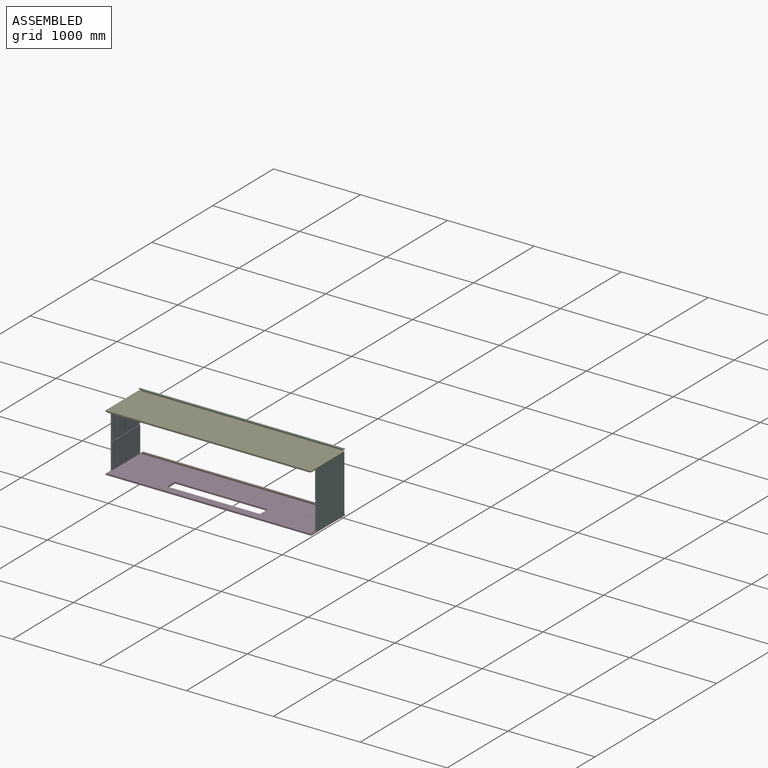
[diagram: assembled view]
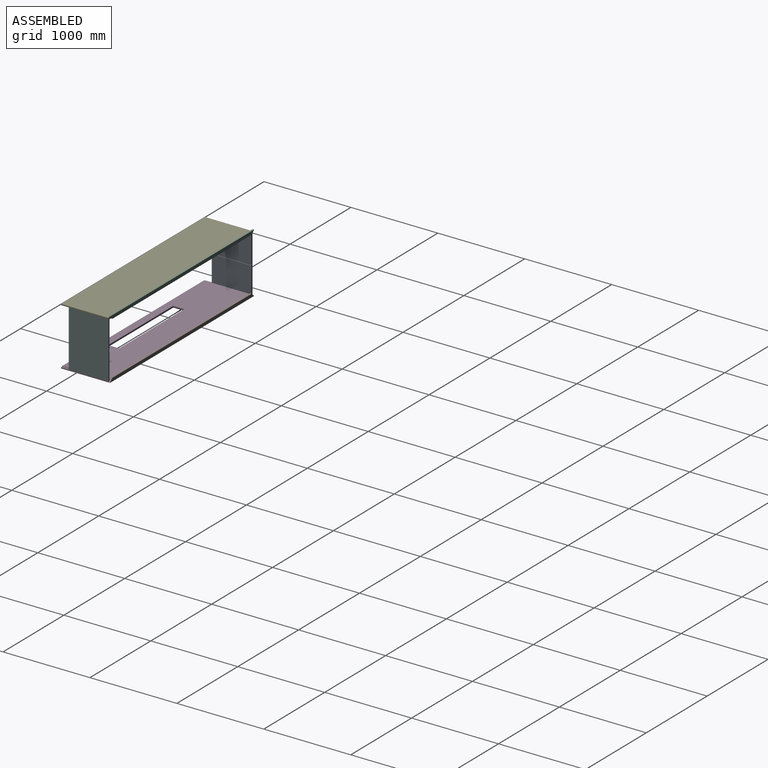
[diagram: assembled view, second angle]
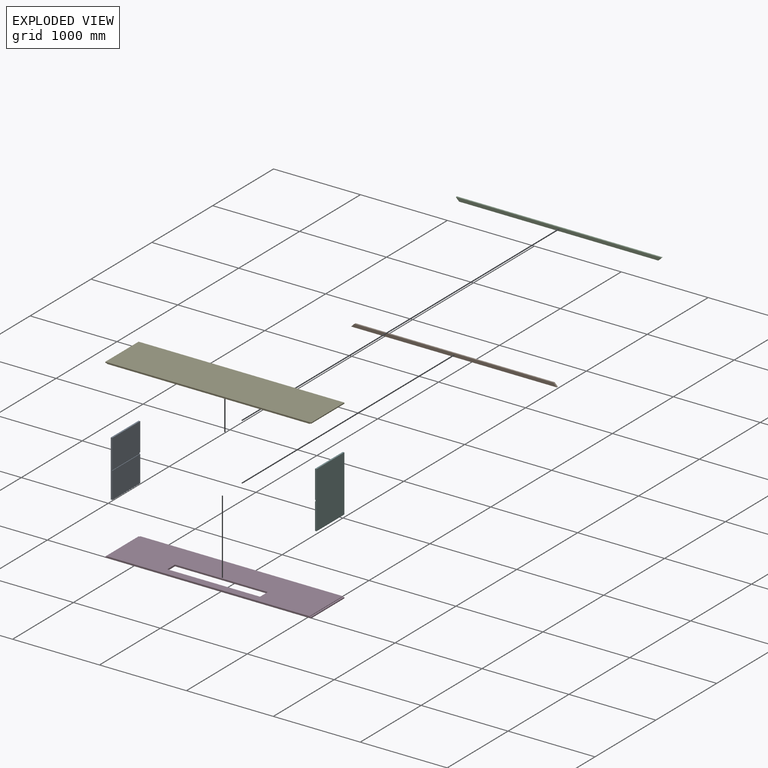
[diagram: exploded view]
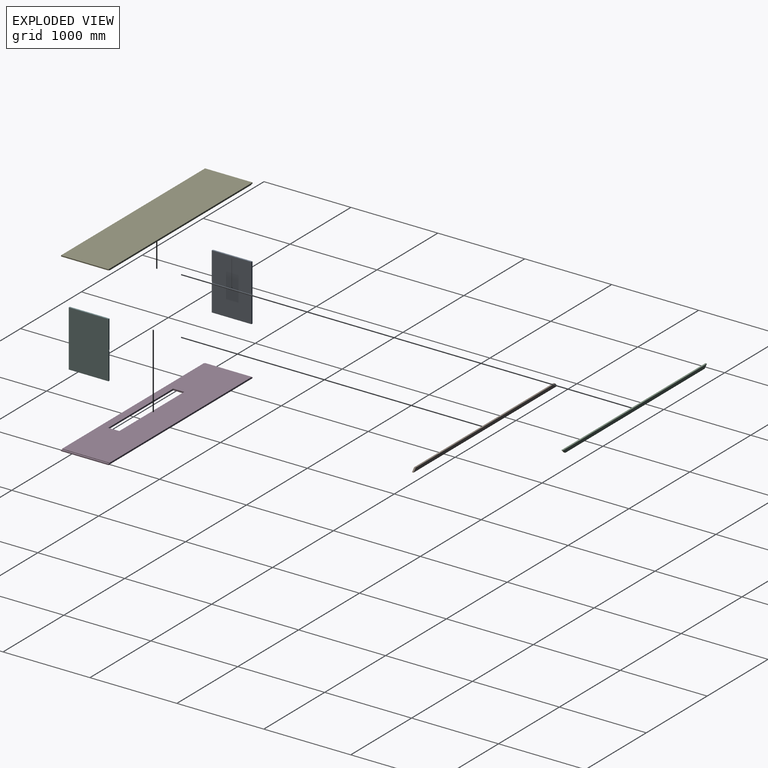
[diagram: exploded view, second angle]
ASSEMBLY  parts=6 mates=6
PART A: 10 faces, bbox 18x457.2x646.1 mm
  f0: plane 457.21x305.06mm, normal (1,0,0), area 139474.4mm2, adj f1,f3,f6,f8
  f1: plane 646.11x18mm, normal (0,-1,0), area 11522mm2, adj f0,f2,f4,f5,f6,f7,f8,f9
  f2: plane 646.11x457.21mm, normal (-1,0,0), area 295408.3mm2, adj f1,f3,f5,f6
  f3: plane 646.11x18mm, normal (0,1,0), area 11522mm2, adj f0,f2,f4,f5,f6,f7,f8,f9
  f4: plane 457.21x323.06mm, normal (1,0,0), area 147704.1mm2, adj f1,f3,f5,f7
  f5: plane 457.21x18mm, normal (0,0,-1), area 8229.8mm2, adj f1,f2,f3,f4
  f6: plane 457.21x18mm, normal (0,0,1), area 8229.8mm2, adj f0,f1,f2,f3
  f7: plane 457.21x6mm, normal (0,0,1), area 2743.3mm2, adj f1,f3,f4,f9
  f8: plane 457.21x6mm, normal (0,0,-1), area 2743.3mm2, adj f0,f1,f3,f9
  f9: plane 457.21x18mm, normal (1,0,0), area 8229.8mm2, adj f1,f3,f7,f8
PART B: 6 faces, bbox 2367x18x38.1 mm
  f0: plane 38.1x38.1mm, normal (0.71,0,-0.71), area 969.9mm2, adj f1,f3,f4,f5
  f1: plane 2366.96x18mm, normal (0,0,1), area 42605.3mm2, adj f0,f2,f4,f5
  f2: plane 38.1x38.1mm, normal (-0.71,0,-0.71), area 969.9mm2, adj f1,f3,f4,f5
  f3: plane 2290.76x18mm, normal (0,0,-1), area 41233.7mm2, adj f0,f2,f4,f5
  f4: plane 2366.96x38.1mm, normal (0,-1,0), area 88729.7mm2, adj f0,f1,f2,f3
  f5: plane 2366.96x38.1mm, normal (0,1,0), area 88729.7mm2, adj f0,f1,f2,f3
PART C: same geometry as B
PART D: 14 faces, bbox 2367x546.1x18 mm
  f0: plane 2366.96x18mm, normal (0,1,0), area 42389.3mm2, adj f1,f2,f4,f5,f6,f7,f8,f9
  f1: plane 2330.96x546.1mm, normal (0,0,-1), area 1137455mm2, adj f0,f3,f6,f8,f10,f11,f12,f13
  f2: plane 546.1x12mm, normal (-1,0,0), area 6553.2mm2, adj f0,f3,f5,f9
  f3: plane 2366.96x18mm, normal (0,-1,0), area 42389.3mm2, adj f1,f2,f4,f5,f6,f7,f8,f9
  f4: plane 546.1x12mm, normal (1,0,0), area 6553.2mm2, adj f0,f3,f5,f7
  f5: plane 2366.96x546.1mm, normal (0,0,1), area 1157114.6mm2, adj f0,f2,f3,f4,f10,f11,f12,f13
  f6: plane 546.1x6mm, normal (1,0,0), area 3276.6mm2, adj f0,f1,f3,f7
  f7: plane 546.1x18mm, normal (0,0,-1), area 9829.8mm2, adj f0,f3,f4,f6
  f8: plane 546.1x6mm, normal (-1,0,0), area 3276.6mm2, adj f0,f1,f3,f9
  f9: plane 546.1x18mm, normal (0,0,-1), area 9829.8mm2, adj f0,f2,f3,f8
  f10: plane 127x18mm, normal (1,0,0), area 2286mm2, adj f1,f5,f11,f13
  f11: plane 1066.8x18mm, normal (0,1,0), area 19202.4mm2, adj f1,f5,f10,f12
  f12: plane 127x18mm, normal (-1,0,0), area 2286mm2, adj f1,f5,f11,f13
  f13: plane 1066.8x18mm, normal (0,-1,0), area 19202.4mm2, adj f1,f5,f10,f12
PART E: 10 faces, bbox 2367x546.1x18 mm
  f0: plane 2366.96x18mm, normal (0,1,0), area 42389.3mm2, adj f1,f3,f4,f5,f6,f7,f8,f9
  f1: plane 546.1x12mm, normal (-1,0,0), area 6553.2mm2, adj f0,f2,f5,f9
  f2: plane 2366.96x18mm, normal (0,-1,0), area 42389.3mm2, adj f1,f3,f4,f5,f6,f7,f8,f9
  f3: plane 546.1x12mm, normal (1,0,0), area 6553.2mm2, adj f0,f2,f5,f7
  f4: plane 2330.96x546.1mm, normal (0,0,1), area 1272938.6mm2, adj f0,f2,f6,f8
  f5: plane 2366.96x546.1mm, normal (0,0,-1), area 1292598.2mm2, adj f0,f1,f2,f3
  f6: plane 546.1x6mm, normal (1,0,0), area 3276.6mm2, adj f0,f2,f4,f7
  f7: plane 546.1x18mm, normal (0,0,1), area 9829.8mm2, adj f0,f2,f3,f6
  f8: plane 546.1x6mm, normal (-1,0,0), area 3276.6mm2, adj f0,f2,f4,f9
  f9: plane 546.1x18mm, normal (0,0,1), area 9829.8mm2, adj f0,f1,f2,f8
PART F: same geometry as A
PLACE A rot(axis=(1,0,0),180deg) t=(-1180.61,-73.19,1256.15)mm
PLACE B rot(axis=(1,0,0),180deg) t=(-1180.61,-73.19,1256.15)mm
PLACE C t=(-1180.61,1037.01,541.94)mm
PLACE D rot(axis=(1,0,0),180deg) t=(-1180.61,-73.19,1256.15)mm
PLACE E rot(axis=(1,0,0),180deg) t=(-1180.61,-73.19,1926.27)mm
PLACE F rot(axis=(0,1,0),180deg) t=(-1014.31,561.8,1256.15)mm
MATE planar E.f4 <-> C.f3  axis (0,0,-1) through (-1097.46,199.86,1206.05)mm
MATE fastened F.f5 <-> E.f7  axis (0,0,1) through (68.02,472.91,1212.05)mm
MATE fastened D.f9 <-> A.f6  axis (0,0,1) through (-2262.94,472.91,565.94)mm
MATE fastened B.f5 <-> D.f3  axis (0,-1,0) through (-2280.94,472.91,553.94)mm
MATE fastened A.f5 <-> E.f9  axis (0,0,1) through (-2262.94,472.91,1212.05)mm
MATE planar C.f4 <-> E.f2  axis (0,-1,0) through (-1097.46,472.91,1225.21)mm
